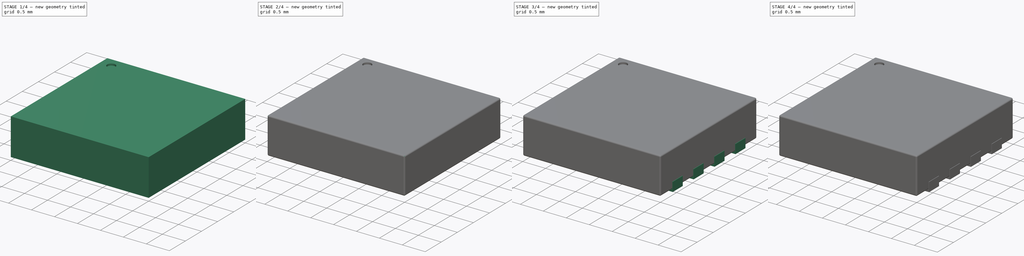
[diagram: build sequence overview — one tinted view per stage of 4, left to right]
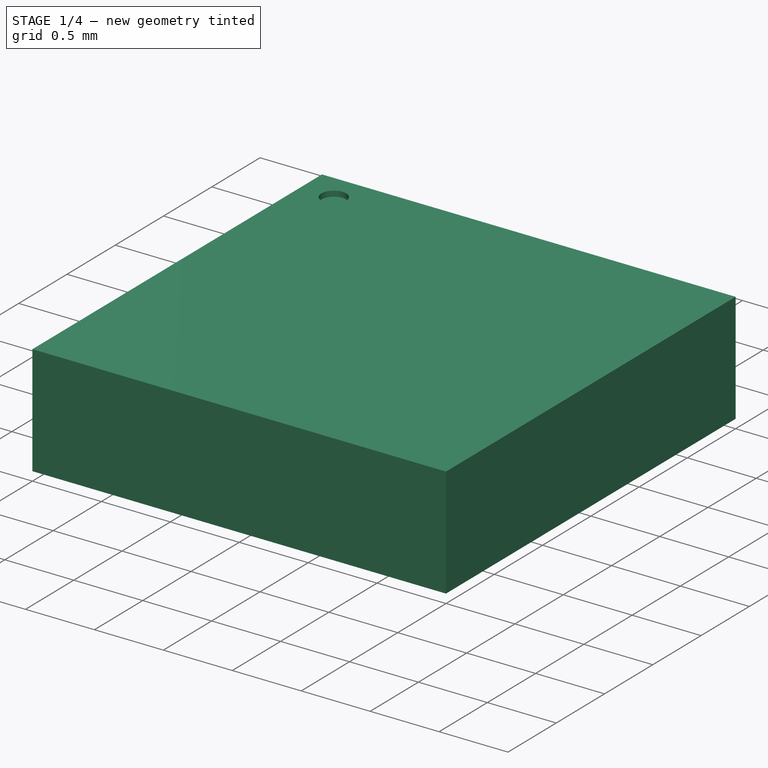
[diagram: stage 1 of 4 — iso view after this stage's code; geometry added in this stage tinted green]
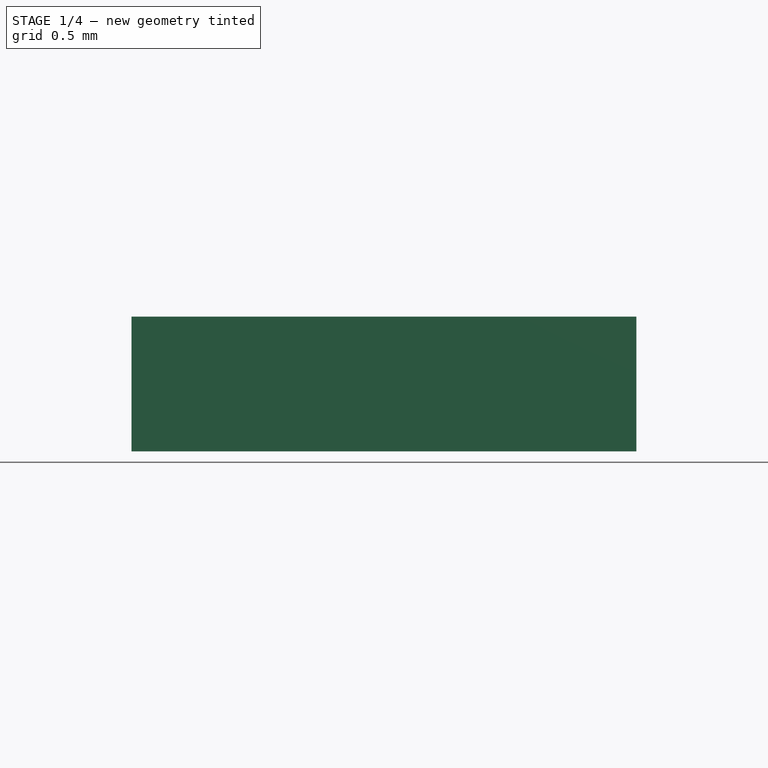
[diagram: stage 1 of 4 — front view after this stage's code; geometry added in this stage tinted green]
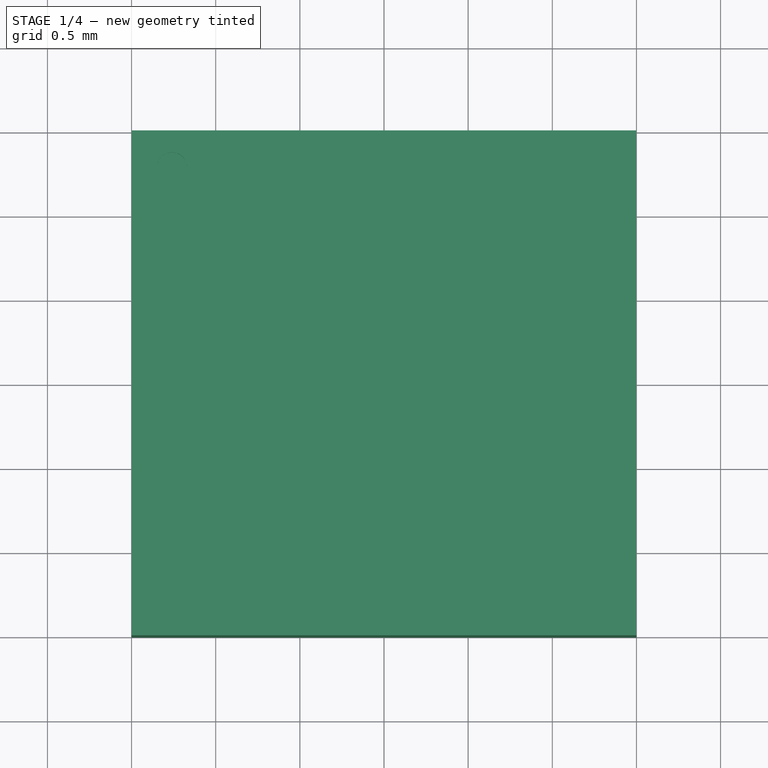
[diagram: stage 1 of 4 — top view after this stage's code; geometry added in this stage tinted green]
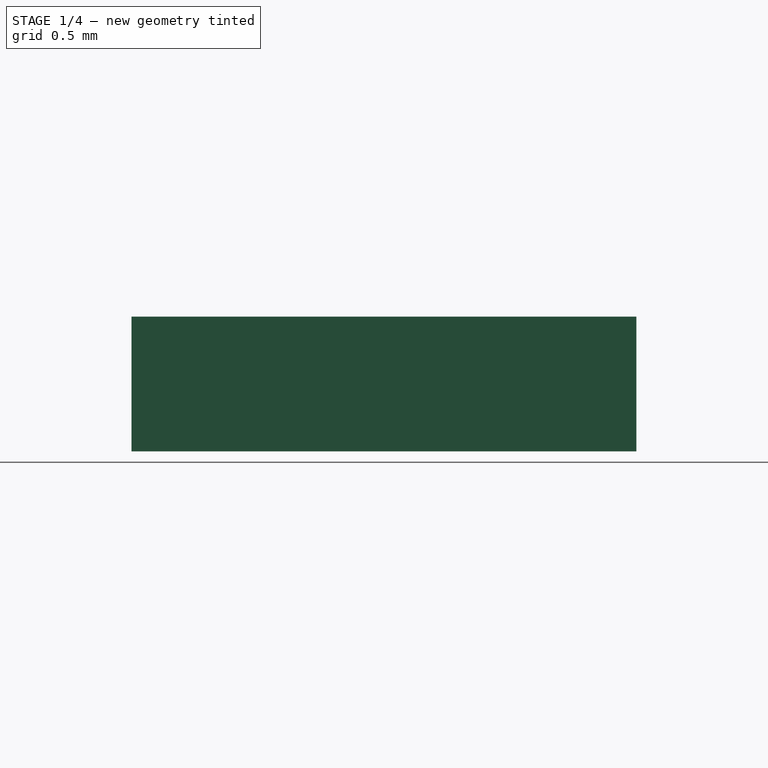
[diagram: stage 1 of 4 — right view after this stage's code; geometry added in this stage tinted green]
FCSTD DOCUMENT  (FreeCAD 0.16R6703 (Git))
Label: DFN-3030-8
License: All rights reserved
LicenseURL: http://en.wikipedia.org/wiki/All_rights_reserved
objects: Sketcher::SketchObject×4, PartDesign::Pad×3, Part::FeaturePython×3, PartDesign::Pocket×1, Part::Mirroring×1, Part::MultiFuse×1, Part::Fillet×1, App::DocumentObjectGroup×1
note: 18 computed .brp shape members not serialized (recipe doc carries the construction recipe); baked Part::Feature solids carry a one-line shape summary decoded from their .brp

FEATURE [Sketcher::SketchObject] Sketch  label="body-sketch"
  Placement = pos=(0,0,0.05) rot=(0,0,1;0rad)
  sketch-geometry (4):
    g0: LineSegment StartX=-1.5 StartY=1.5 StartZ=0 EndX=1.5 EndY=1.5 EndZ=0
    g1: LineSegment StartX=1.5 StartY=1.5 StartZ=0 EndX=1.5 EndY=-1.5 EndZ=0
    g2: LineSegment StartX=1.5 StartY=-1.5 StartZ=0 EndX=-1.5 EndY=-1.5 EndZ=0
    g3: LineSegment StartX=-1.5 StartY=-1.5 StartZ=0 EndX=-1.5 EndY=1.5 EndZ=0
  constraints (11):
    c: Coincident(g0,g1)
    c: Coincident(g1,g2)
    c: Coincident(g2,g3)
    c: Coincident(g3,g0)
    c: Horizontal(g0)
    c: Horizontal(g2)
    c: Vertical(g1)
    c: Vertical(g3)
    c: Symmetric(g0,g1,g-1)
    c: DistanceX(g0,g0) = 3
    c: Equal(g0,g1)
FEATURE [PartDesign::Pad] Pad  label="body-src"
  Length = 0.8
  Length2 = 100
  Placement = pos=(0,0,0.05) rot=(0,0,1;0rad)
  Sketch = -> Sketch
  Type = 0
FEATURE [Sketcher::SketchObject] Sketch001
  Placement = pos=(0,0,0.85) rot=(0,0,1;0rad)
  Support = -> Pad [Face6]
  sketch-geometry (1):
    g0: Circle CenterX=-1.26 CenterY=1.28 CenterZ=0 NormalX=0 NormalY=0 NormalZ=1 Radius=0.09
  constraints (3):
    c: Radius(g0) = 0.09
    c: DistanceX(g0,g-1) = 1.26
    c: DistanceY(g-1,g0) = 1.28
FEATURE [PartDesign::Pocket] Pocket  label="body-mark"
  Length = 0.04
  Placement = pos=(0,0,0.05) rot=(0,0,1;0rad)
  Sketch = -> Sketch001
  Type = 0
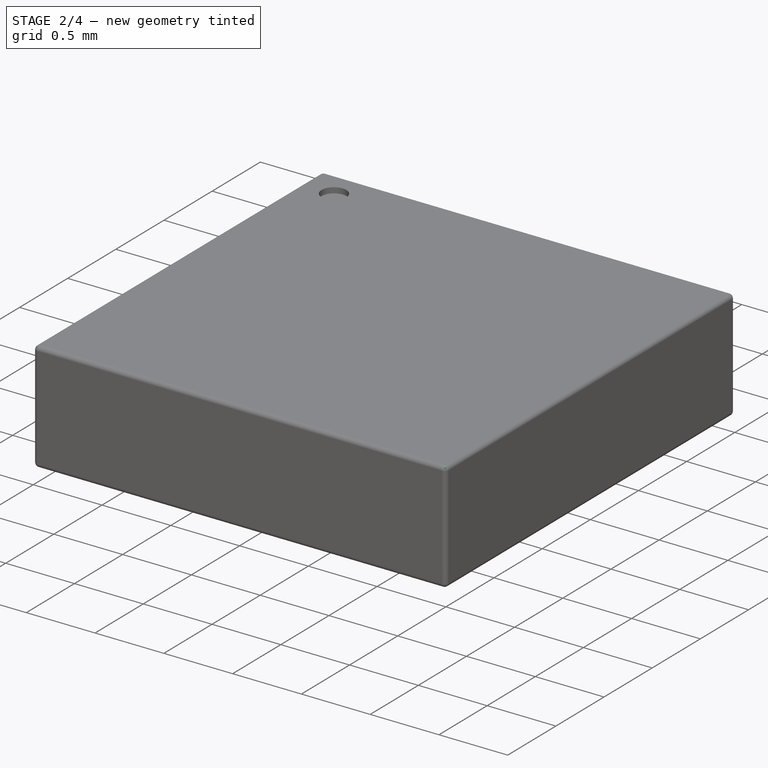
[diagram: stage 2 of 4 — iso view after this stage's code; geometry added in this stage tinted green]
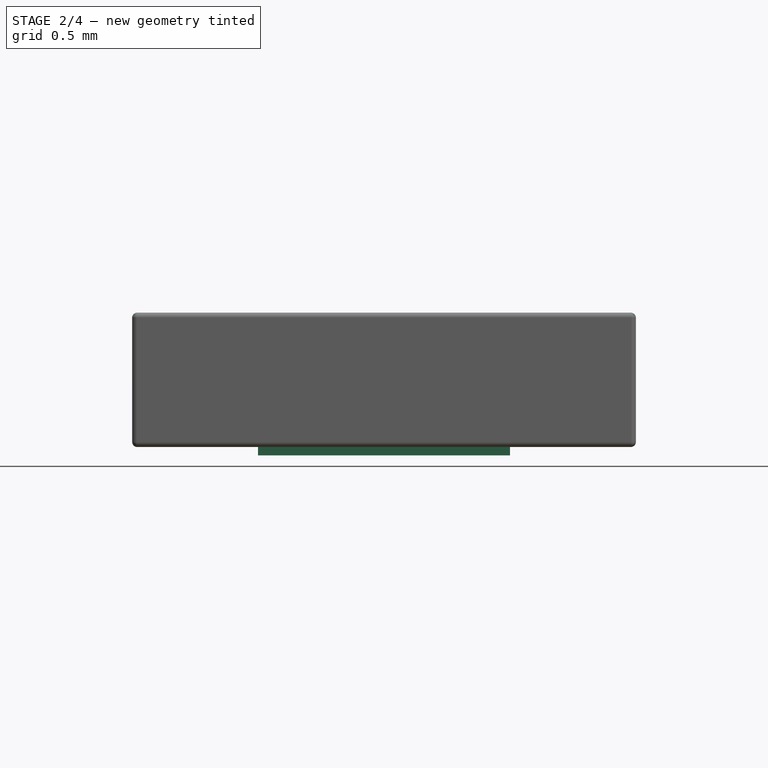
[diagram: stage 2 of 4 — front view after this stage's code; geometry added in this stage tinted green]
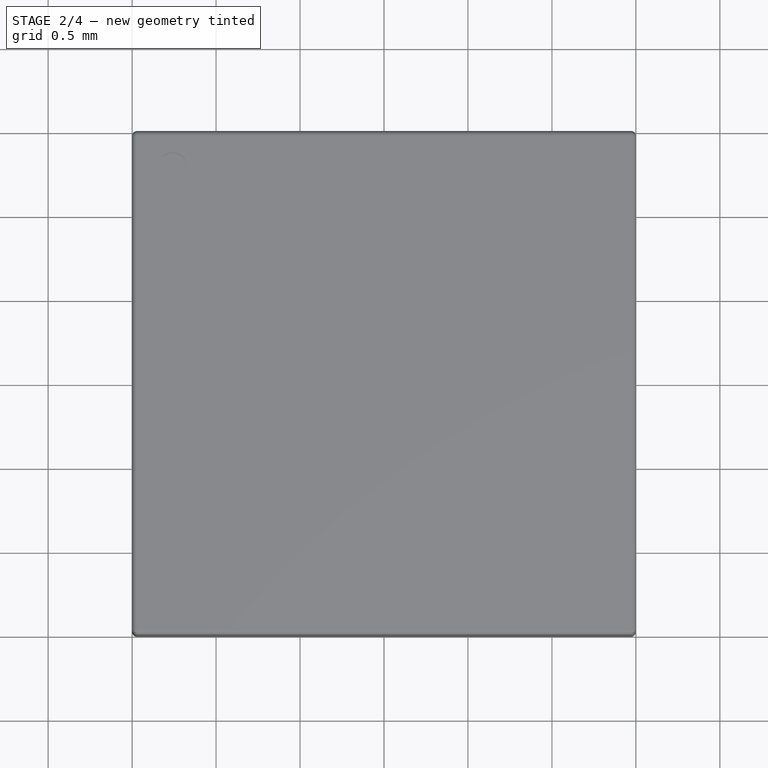
[diagram: stage 2 of 4 — top view after this stage's code; geometry added in this stage tinted green]
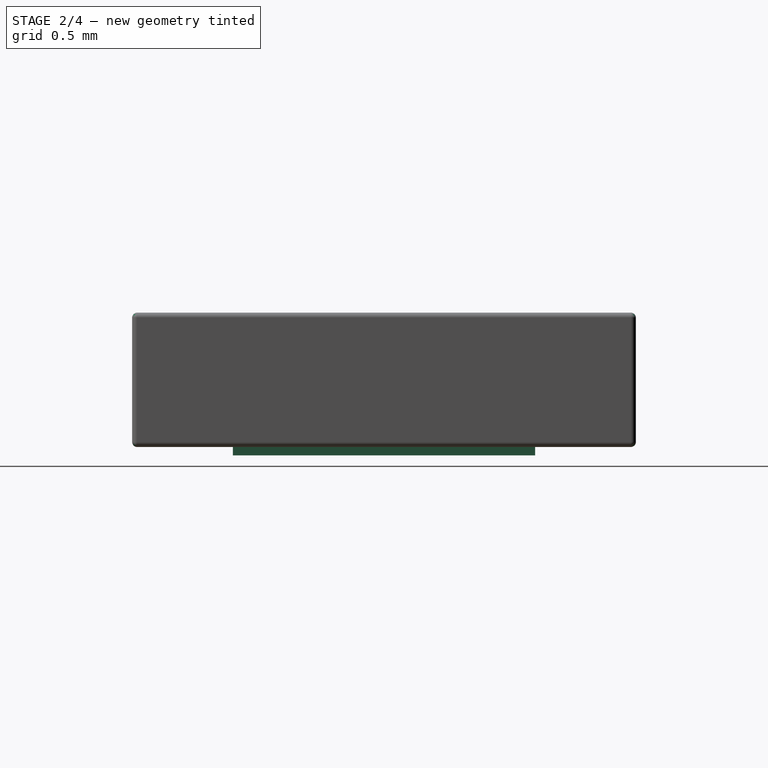
[diagram: stage 2 of 4 — right view after this stage's code; geometry added in this stage tinted green]
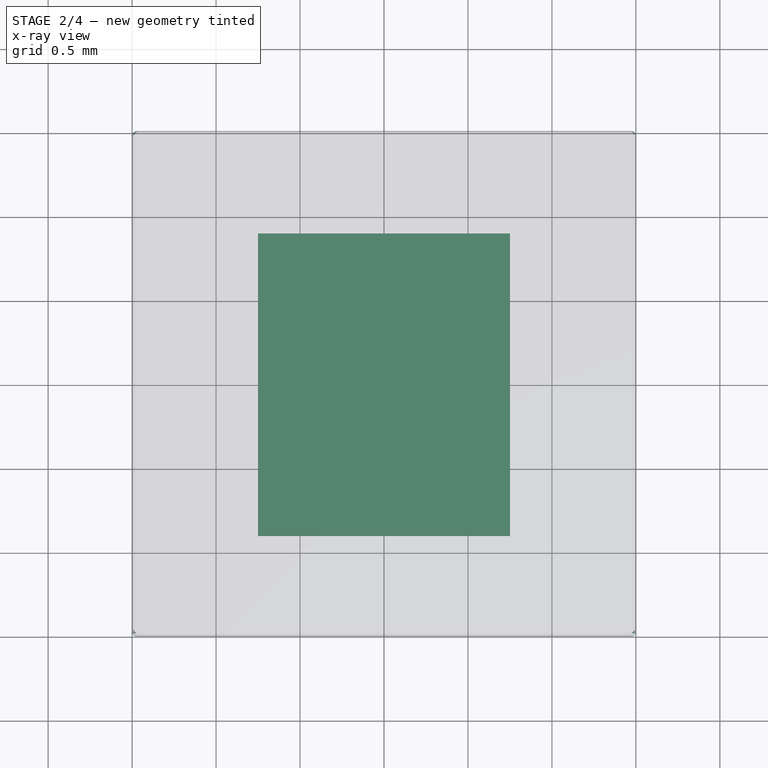
[diagram: stage 2 of 4 — x-ray composite at the top view; earlier geometry ghosted, this stage's added geometry solid]
FEATURE [Sketcher::SketchObject] Sketch003  label="pad-central-sketch"
  sketch-geometry (4):
    g0: LineSegment StartX=-0.75 StartY=0.9 StartZ=0 EndX=0.75 EndY=0.9 EndZ=0
    g1: LineSegment StartX=0.75 StartY=0.9 StartZ=0 EndX=0.75 EndY=-0.9 EndZ=0
    g2: LineSegment StartX=0.75 StartY=-0.9 StartZ=0 EndX=-0.75 EndY=-0.9 EndZ=0
    g3: LineSegment StartX=-0.75 StartY=-0.9 StartZ=0 EndX=-0.75 EndY=0.9 EndZ=0
  constraints (11):
    c: Coincident(g0,g1)
    c: Coincident(g1,g2)
    c: Coincident(g2,g3)
    c: Coincident(g3,g0)
    c: Horizontal(g0)
    c: Horizontal(g2)
    c: Vertical(g1)
    c: Vertical(g3)
    c: Symmetric(g0,g1,g-1)
    c: DistanceX(g0,g0) = 1.5
    c: DistanceY(g1,g1) = 1.8
FEATURE [PartDesign::Pad] Pad002  label="pad-central"
  Length = 0.2
  Length2 = 100
  Sketch = -> Sketch003
  Type = 0
FEATURE [Part::Fillet] Fillet  label="body-fillet"
  Base = -> Pocket
  Edges = 12 edges r=0.03: [Edge1,Edge2,Edge3,Edge4,Edge5,Edge6,Edge7,Edge8,Edge9,Edge10,Edge11,Edge12]
FEATURE [App::DocumentObjectGroup] Group  label="src"
  Group = -> [Pad,Pocket,Fusion,Fillet]
FEATURE [Part::FeaturePython] Clone  label="body"  # Draft clone (typed FeaturePython)
  Objects = -> [Fillet]
  Scale = (1,1,1)
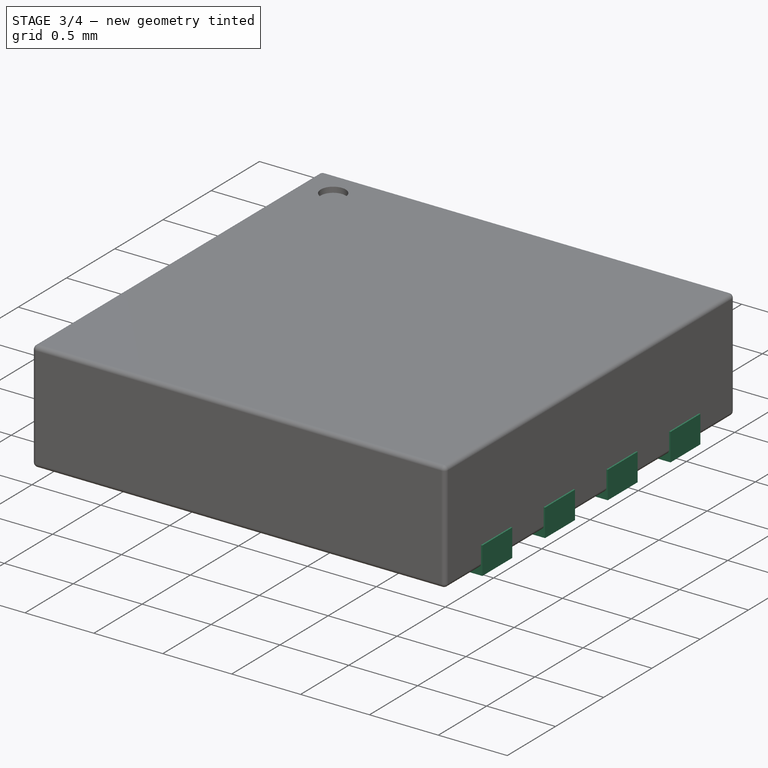
[diagram: stage 3 of 4 — iso view after this stage's code; geometry added in this stage tinted green]
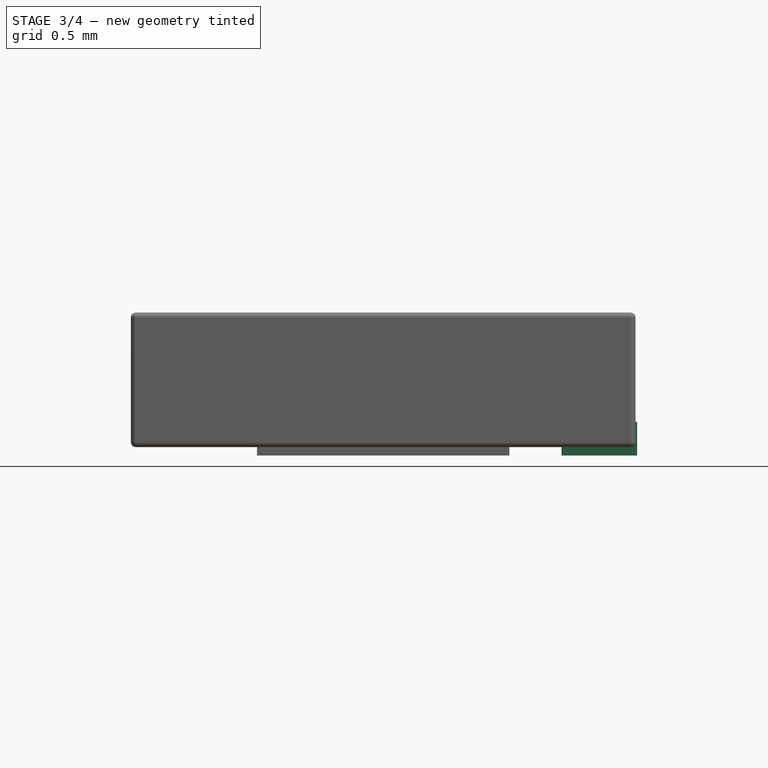
[diagram: stage 3 of 4 — front view after this stage's code; geometry added in this stage tinted green]
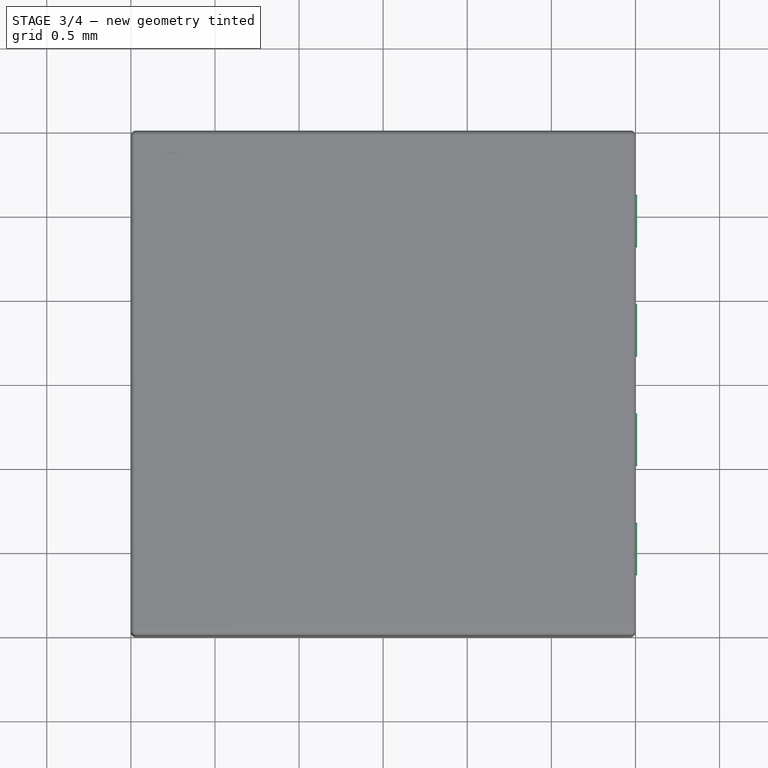
[diagram: stage 3 of 4 — top view after this stage's code; geometry added in this stage tinted green]
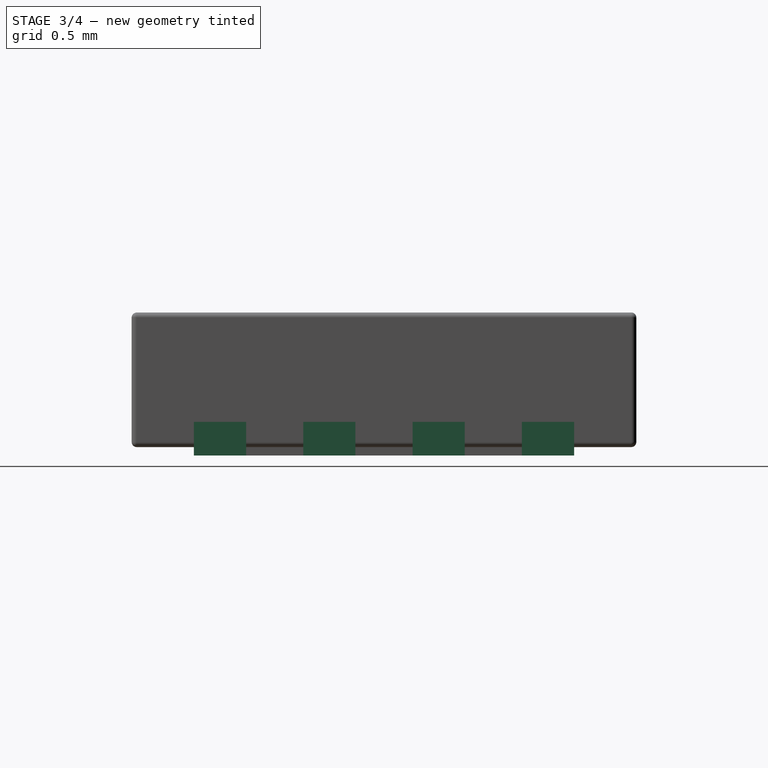
[diagram: stage 3 of 4 — right view after this stage's code; geometry added in this stage tinted green]
FEATURE [Sketcher::SketchObject] Sketch002  label="pad-sketch"
  sketch-geometry (4):
    g0: LineSegment StartX=-1.51 StartY=1.13 StartZ=0 EndX=-1.06 EndY=1.13 EndZ=0
    g1: LineSegment StartX=-1.06 StartY=1.13 StartZ=0 EndX=-1.06 EndY=0.82 EndZ=0
    g2: LineSegment StartX=-1.06 StartY=0.82 StartZ=0 EndX=-1.51 EndY=0.82 EndZ=0
    g3: LineSegment StartX=-1.51 StartY=0.82 StartZ=0 EndX=-1.51 EndY=1.13 EndZ=0
  constraints (12):
    c: Coincident(g0,g1)
    c: Coincident(g1,g2)
    c: Coincident(g2,g3)
    c: Coincident(g3,g0)
    c: Horizontal(g0)
    c: Horizontal(g2)
    c: Vertical(g1)
    c: Vertical(g3)
    c: DistanceY(g1,g1) = 0.31
    c: DistanceX(g2,g2) = 0.45
    c: DistanceX(g1,g-1) = 1.06
    c: DistanceY(g-1,g1) = 0.82
FEATURE [PartDesign::Pad] Pad001  label="pads-src"
  Length = 0.2
  Length2 = 100
  Sketch = -> Sketch002
  Type = 0
FEATURE [Part::FeaturePython] Array  label="pads-left"  # Draft array (typed FeaturePython)
  Angle = 360
  ArrayType = 0
  Axis = (0,0,1)
  Base = -> Pad001
  Center = (0,0,0)
  Fuse = false
  IntervalAxis = (0,0,0)
  IntervalX = (1,0,0)
  IntervalY = (0,-0.65,0)
  IntervalZ = (0,0,0)
  NumberPolar = 1
  NumberX = 1
  NumberY = 4
  NumberZ = 1
FEATURE [Part::Mirroring] Part__Mirroring  label="pads-left (Mirror #1)"
  Base = (0,0,0)
  Normal = (1,0,0)
  Source = -> Array
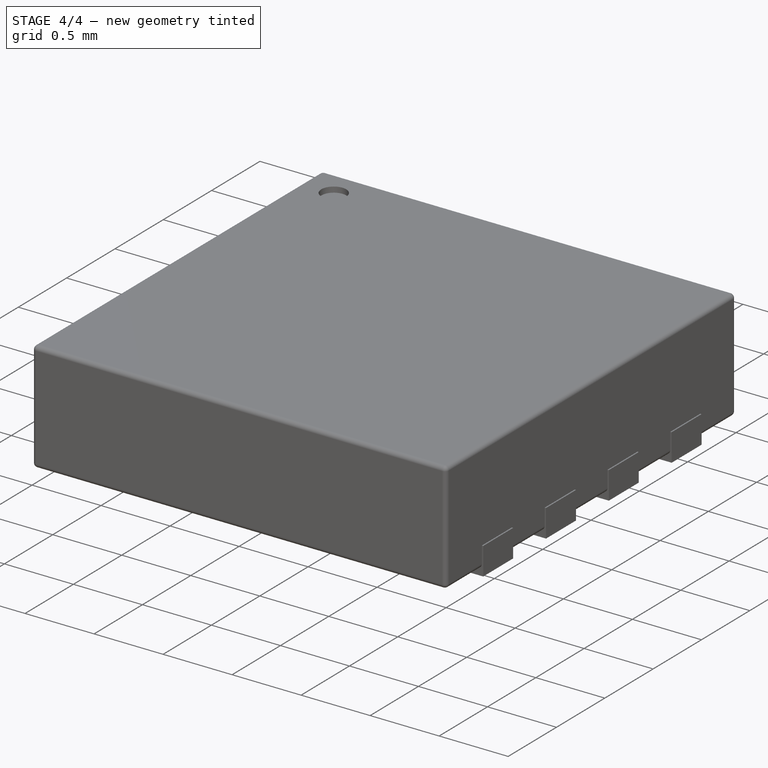
[diagram: stage 4 of 4 — iso view after this stage's code; geometry added in this stage tinted green]
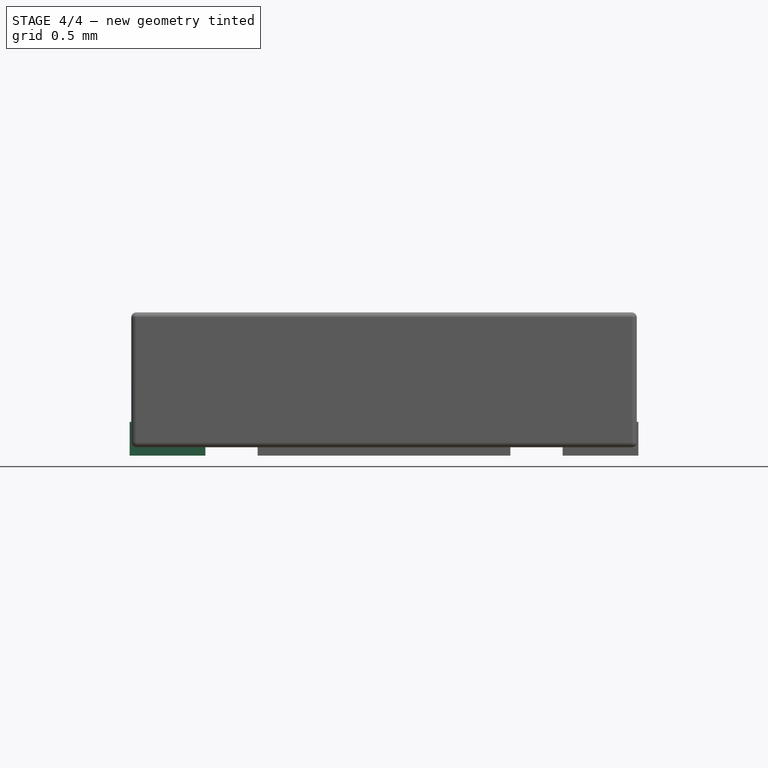
[diagram: stage 4 of 4 — front view after this stage's code; geometry added in this stage tinted green]
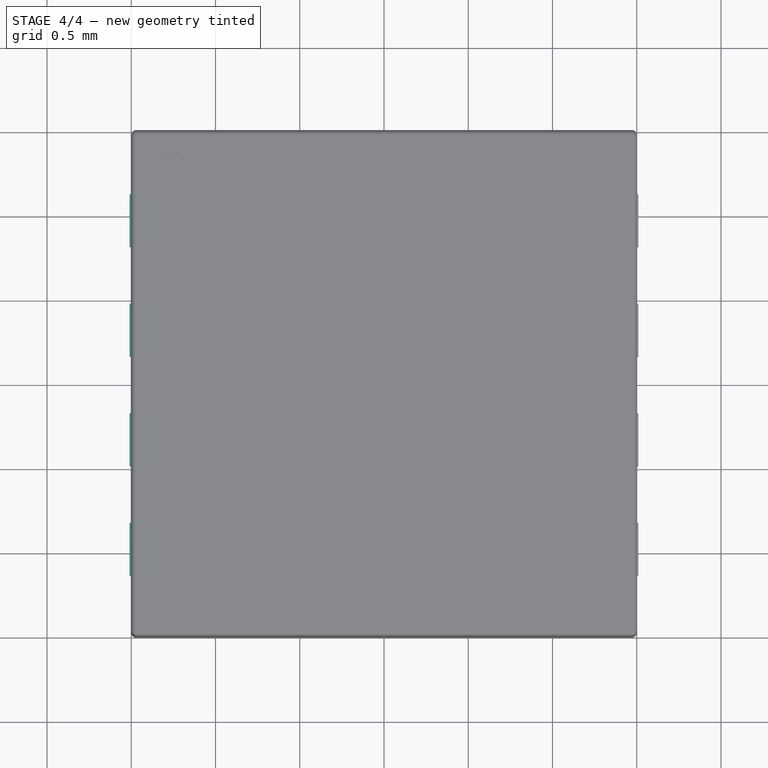
[diagram: stage 4 of 4 — top view after this stage's code; geometry added in this stage tinted green]
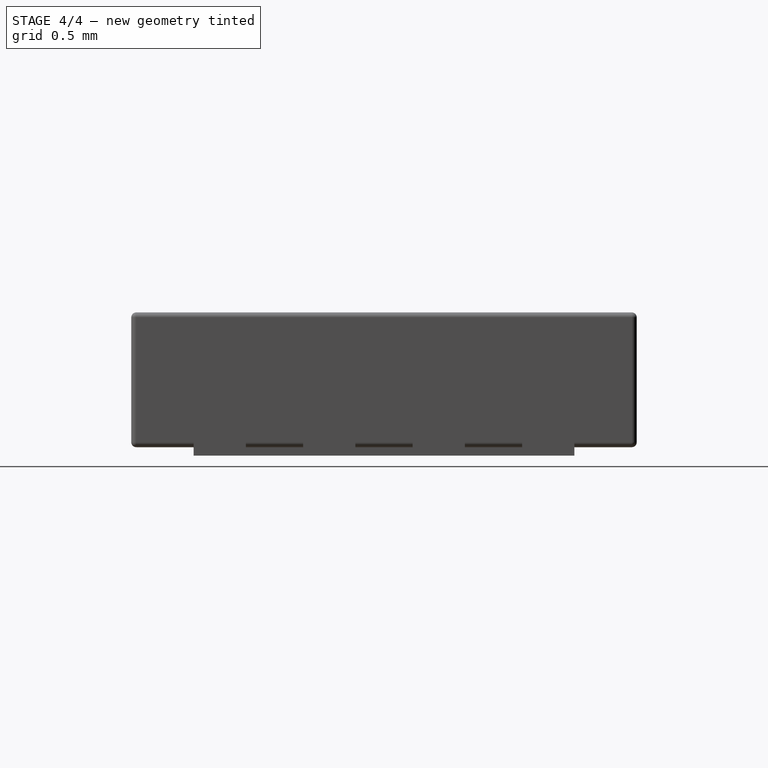
[diagram: stage 4 of 4 — right view after this stage's code; geometry added in this stage tinted green]
FEATURE [Part::MultiFuse] Fusion  label="pads-src001"
  Shapes = -> [Part__Mirroring,Array,Pad002]
FEATURE [Part::FeaturePython] Clone001  label="pads"  # Draft clone (typed FeaturePython)
  Objects = -> [Fusion]
  Scale = (1,1,1)
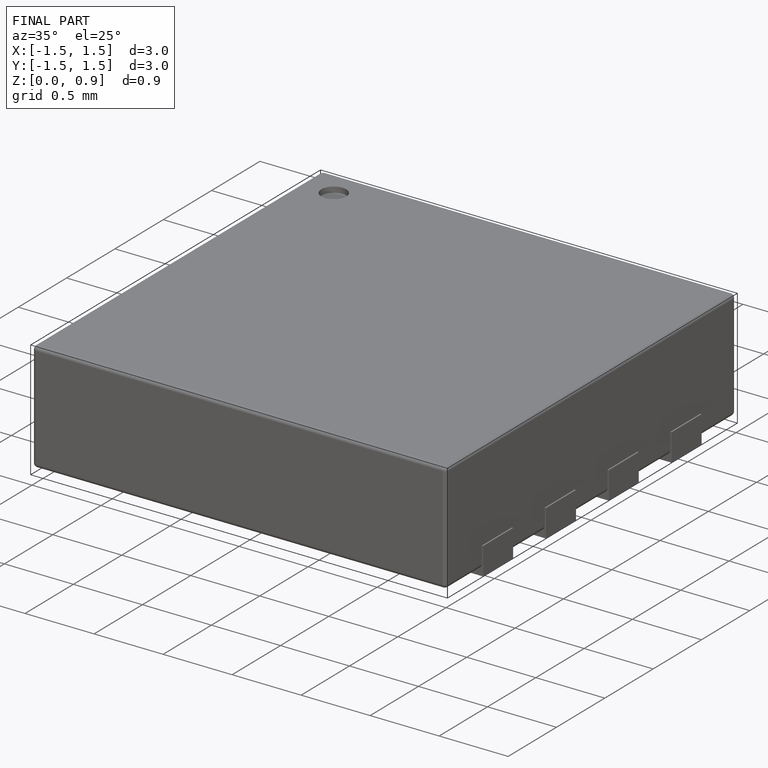
[diagram: finished part — iso view with bounding-box wireframe]
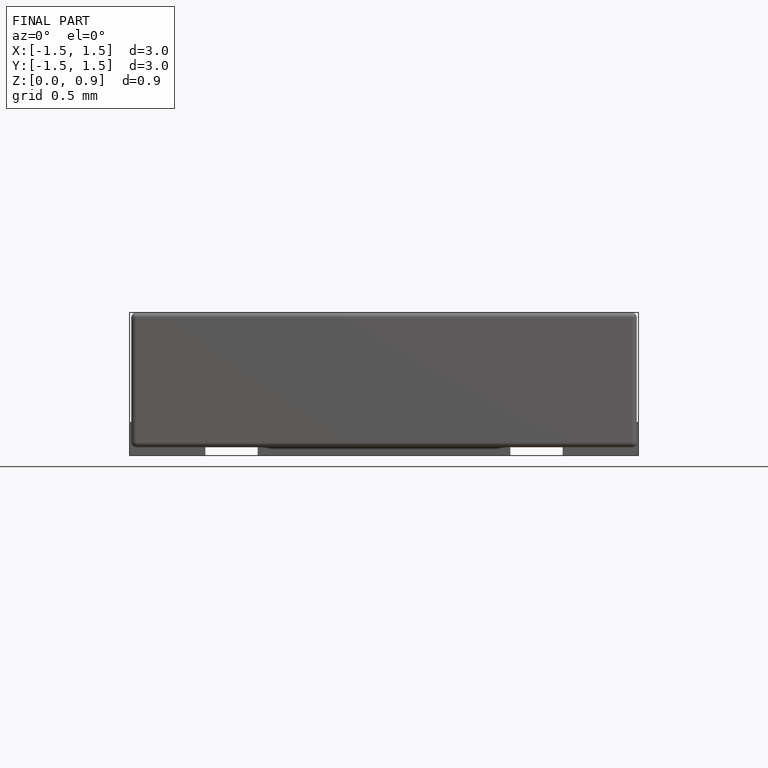
[diagram: finished part — front view with bounding-box wireframe]
